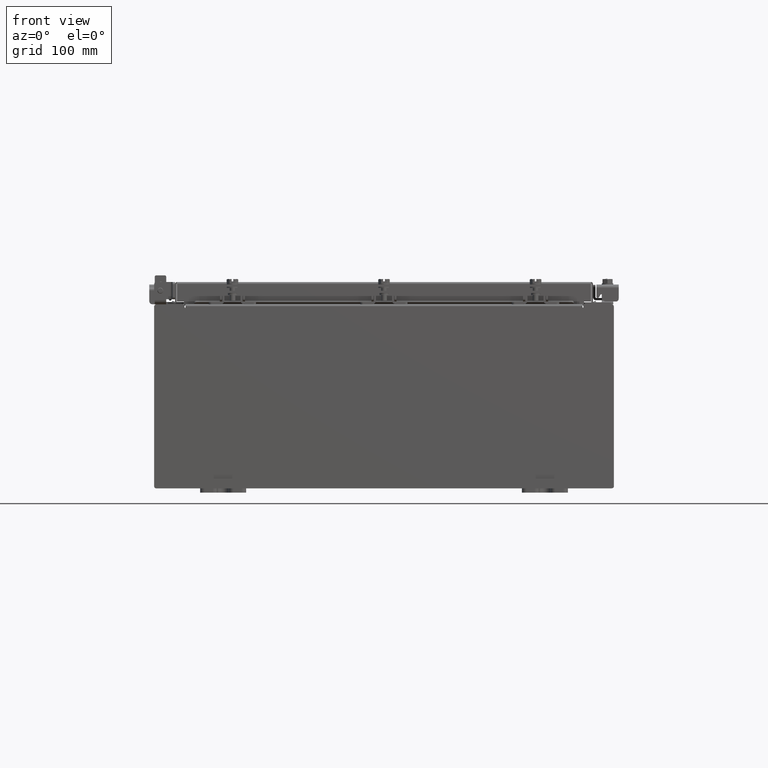
[diagram: clean part render]
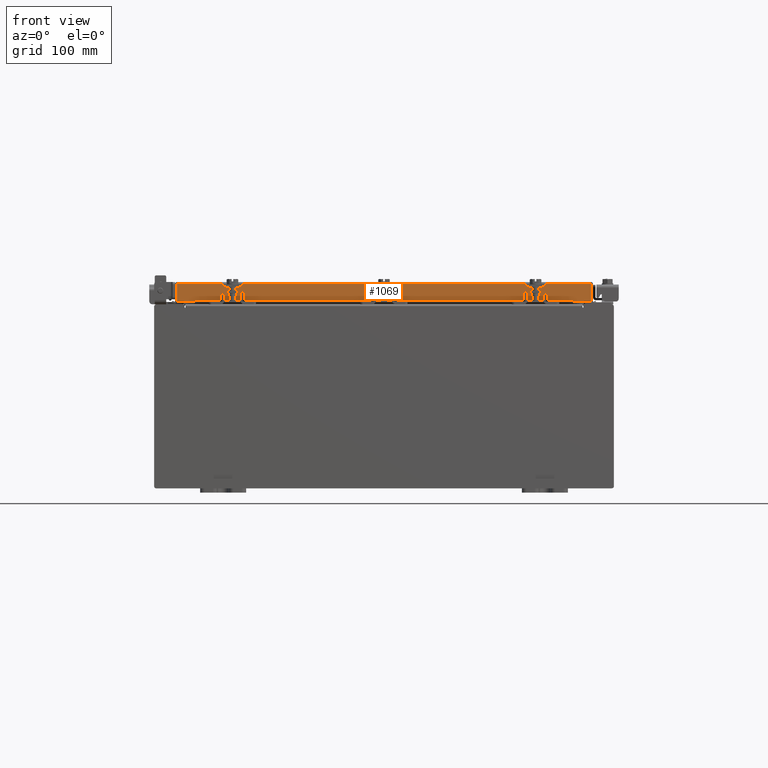
[diagram: same view with one face highlighted and labeled with its STEP entity id]
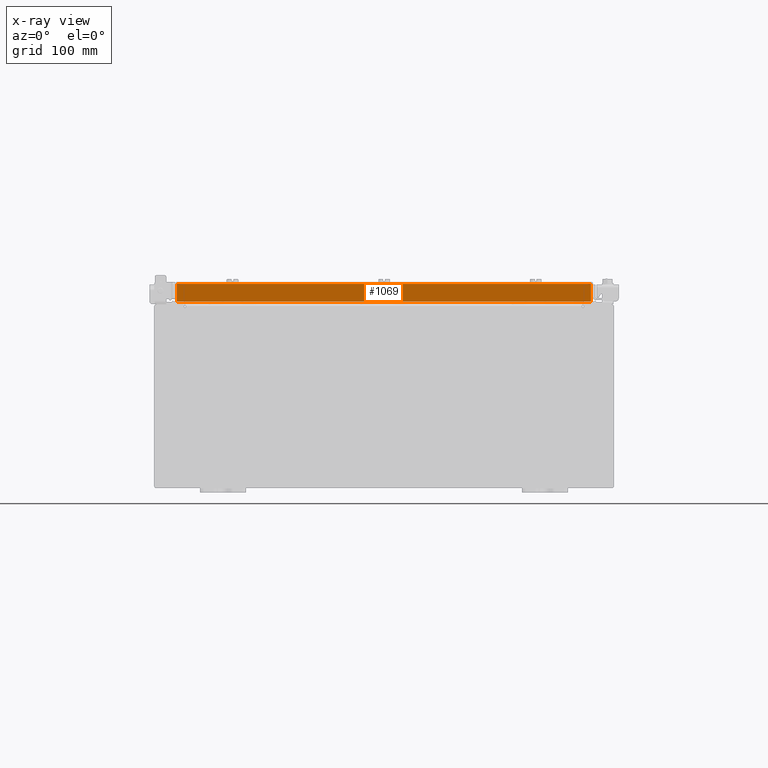
[diagram: x-ray of the same camera — body ghosted, the highlighted face saturated]
A machine part, front view. The second image highlights one B-rep face of the part: STEP entity #1069.
The next image is the same camera in x-ray: the body ghosted, the highlighted face saturated — about 0% of this face is hidden behind the body in this view.
In plain terms, the highlighted planar face has unit normal (-0, 1, -0).
Its self-contained STEP definition (entity closure, byte-faithful):
#2 = CARTESIAN_POINT ( 'NONE',  ( 9.094000000000001200, -9.094000000000001200, -0.8499999999999999800 ) ) ;
#1069 = ADVANCED_FACE ( 'NONE', ( #8651 ), #15151, .F. ) ;
#1656 = LINE ( 'NONE', #3197, #19696 ) ;
#1680 = CARTESIAN_POINT ( 'NONE',  ( 9.094000000000001200, -9.094000000000001200, -0.8499999999999999800 ) ) ;
#1737 = DIRECTION ( 'NONE',  ( -1.000000000000000000, 4.379057701015054300E-047, 1.201604571657912400E-016 ) ) ;
#1817 = ORIENTED_EDGE ( 'NONE', *, *, #1893, .F. ) ;
#1893 = EDGE_CURVE ( 'NONE', #20397, #4172, #19934, .T. ) ;
#2009 = VECTOR ( 'NONE', #9512, 39.37007874015748100 ) ;
#2122 = DIRECTION ( 'NONE',  ( -0.0000000000000000000, -2.818880942772360100E-015, -1.000000000000000000 ) ) ;
#3197 = CARTESIAN_POINT ( 'NONE',  ( -9.005157864376267100, -9.093999999999999400, 2.622574073917692700E-014 ) ) ;
#4172 = VERTEX_POINT ( 'NONE', #16075 ) ;
#4836 = CARTESIAN_POINT ( 'NONE',  ( 8.255157864376267100, -9.094000000000001200, -0.8500000000000020900 ) ) ;
#4931 = CARTESIAN_POINT ( 'NONE',  ( 9.094000000000001200, -9.093999999999999400, -0.08770000000000026400 ) ) ;
#5605 = CARTESIAN_POINT ( 'NONE',  ( 9.005157864376268900, -9.093999999999999400, -0.07470000000000015500 ) ) ;
#5745 = CARTESIAN_POINT ( 'NONE',  ( 0.0000000000000000000, -9.093999999999999400, 2.622574073917692700E-014 ) ) ;
#6066 = VERTEX_POINT ( 'NONE', #18703 ) ;
#6087 = VERTEX_POINT ( 'NONE', #4836 ) ;
#6512 = VECTOR ( 'NONE', #12128, 39.37007874015748100 ) ;
#6978 = VERTEX_POINT ( 'NONE', #22264 ) ;
#8444 = ORIENTED_EDGE ( 'NONE', *, *, #10377, .F. ) ;
#8651 = FACE_OUTER_BOUND ( 'NONE', #10880, .T. ) ;
#8861 = CARTESIAN_POINT ( 'NONE',  ( -8.255157864376267100, -9.094000000000001200, -0.8500000000000020900 ) ) ;
#9512 = DIRECTION ( 'NONE',  ( -1.000000000000000000, 0.0000000000000000000, 0.0000000000000000000 ) ) ;
#10301 = ORIENTED_EDGE ( 'NONE', *, *, #11415, .F. ) ;
#10377 = EDGE_CURVE ( 'NONE', #14034, #6066, #15466, .T. ) ;
#10687 = VECTOR ( 'NONE', #2122, 39.37007874015748100 ) ;
#10880 = EDGE_LOOP ( 'NONE', ( #1817, #18451, #8444, #10301, #13097, #11295 ) ) ;
#11253 = LINE ( 'NONE', #5605, #10687 ) ;
#11295 = ORIENTED_EDGE ( 'NONE', *, *, #19613, .F. ) ;
#11415 = EDGE_CURVE ( 'NONE', #6087, #14034, #20605, .T. ) ;
#12128 = DIRECTION ( 'NONE',  ( 1.000000000000000000, 3.387180227794633400E-031, -9.232666117091638000E-046 ) ) ;
#13097 = ORIENTED_EDGE ( 'NONE', *, *, #16679, .F. ) ;
#14034 = VERTEX_POINT ( 'NONE', #8861 ) ;
#14648 = LINE ( 'NONE', #2, #19275 ) ;
#15151 = PLANE ( 'NONE',  #20326 ) ;
#15466 = LINE ( 'NONE', #1680, #19550 ) ;
#16075 = CARTESIAN_POINT ( 'NONE',  ( 9.005157864376270600, -9.093999999999999400, -0.08770000000000026400 ) ) ;
#16250 = CARTESIAN_POINT ( 'NONE',  ( -9.005157864376267100, -9.093999999999999400, -0.08770000000000026400 ) ) ;
#16679 = EDGE_CURVE ( 'NONE', #6978, #6087, #14648, .T. ) ;
#18451 = ORIENTED_EDGE ( 'NONE', *, *, #20940, .T. ) ;
#18600 = DIRECTION ( 'NONE',  ( -3.387180227794633400E-031, 1.000000000000000000, -2.818880942772360100E-015 ) ) ;
#18703 = CARTESIAN_POINT ( 'NONE',  ( -9.005157864376267100, -9.094000000000001200, -0.8499999999999977600 ) ) ;
#18902 = DIRECTION ( 'NONE',  ( 0.0000000000000000000, -2.818880942772360100E-015, -1.000000000000000000 ) ) ;
#19275 = VECTOR ( 'NONE', #1737, 39.37007874015748100 ) ;
#19550 = VECTOR ( 'NONE', #20925, 39.37007874015748100 ) ;
#19613 = EDGE_CURVE ( 'NONE', #4172, #6978, #11253, .T. ) ;
#19696 = VECTOR ( 'NONE', #18902, 39.37007874015748100 ) ;
#19934 = LINE ( 'NONE', #4931, #6512 ) ;
#19976 = CARTESIAN_POINT ( 'NONE',  ( 8.255157864376267100, -9.094000000000001200, -0.8500000000000020900 ) ) ;
#20326 = AXIS2_PLACEMENT_3D ( 'NONE', #5745, #18600, #20327 ) ;
#20327 = DIRECTION ( 'NONE',  ( 0.0000000000000000000, 2.818880942772360100E-015, 1.000000000000000000 ) ) ;
#20397 = VERTEX_POINT ( 'NONE', #16250 ) ;
#20605 = LINE ( 'NONE', #19976, #2009 ) ;
#20925 = DIRECTION ( 'NONE',  ( -1.000000000000000000, 4.379057701015054300E-047, 1.201604571657912400E-016 ) ) ;
#20940 = EDGE_CURVE ( 'NONE', #20397, #6066, #1656, .T. ) ;
#22264 = CARTESIAN_POINT ( 'NONE',  ( 9.005157864376268900, -9.094000000000001200, -0.8499999999999999800 ) ) ;